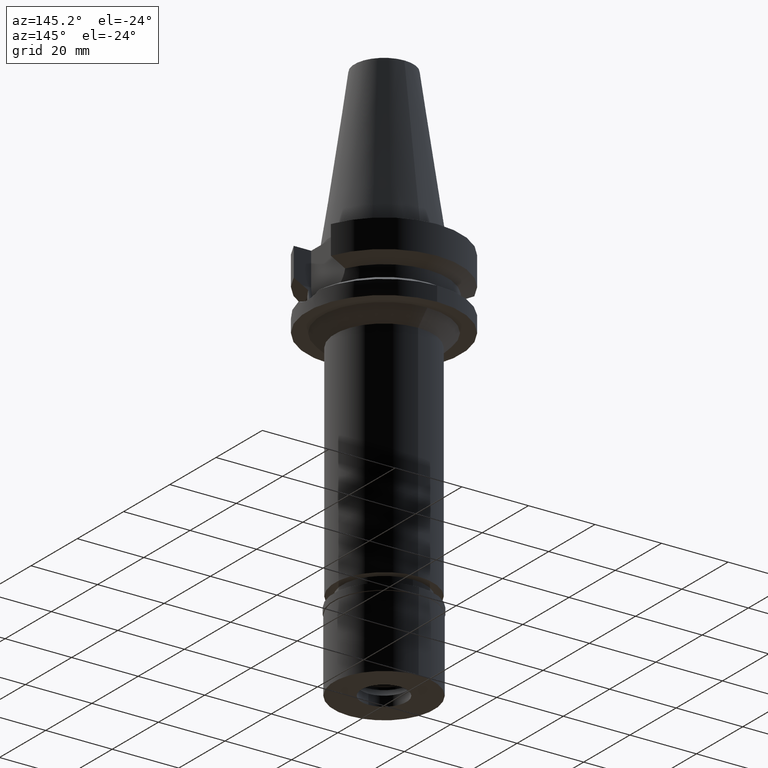
[diagram: clean part render]
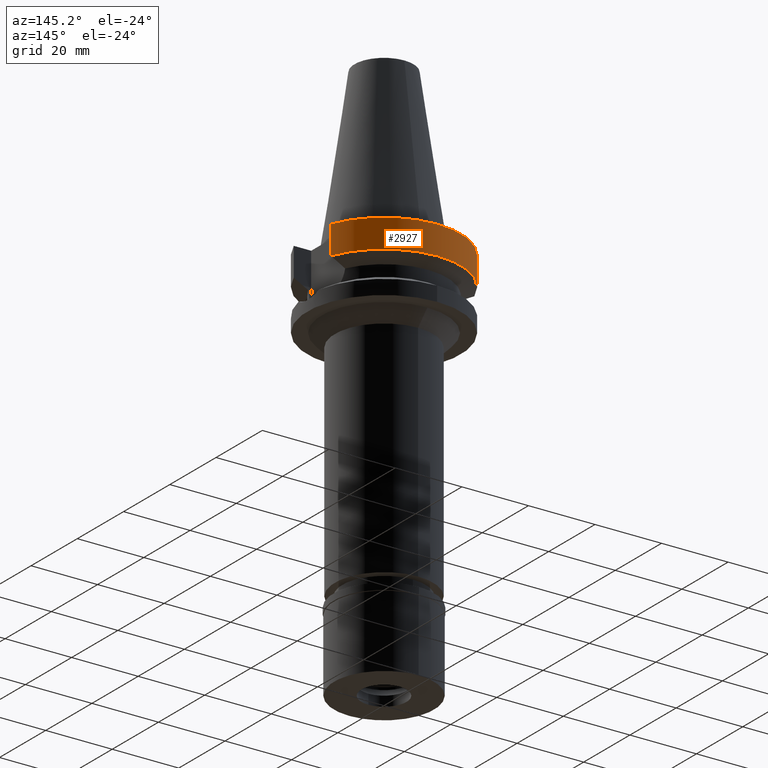
[diagram: same view with one face highlighted and labeled with its STEP entity id]
A machine part, auxiliary view. The second image highlights one B-rep face of the part: STEP entity #2927.
In plain terms, the highlighted cylindrical surface (partial cylindrical patch) has radius 23 mm, axis along (0, 0, -1).
Its self-contained STEP definition (entity closure, byte-faithful):
#45 = ORIENTED_EDGE ( 'NONE', *, *, #564, .F. ) ;
#137 = DIRECTION ( 'NONE',  ( 0.0000000000000000000, 0.0000000000000000000, -1.000000000000000000 ) ) ;
#205 = VERTEX_POINT ( 'NONE', #2533 ) ;
#235 = VECTOR ( 'NONE', #309, 1000.000000000000114 ) ;
#309 = DIRECTION ( 'NONE',  ( 9.134698358602689986E-08, 2.444834607303914619E-07, -0.9999999999999659162 ) ) ;
#408 = FACE_OUTER_BOUND ( 'NONE', #1523, .T. ) ;
#443 = VERTEX_POINT ( 'NONE', #2646 ) ;
#564 = EDGE_CURVE ( 'NONE', #1964, #2020, #2346, .T. ) ;
#613 = AXIS2_PLACEMENT_3D ( 'NONE', #1376, #2742, #1850 ) ;
#875 = EDGE_CURVE ( 'NONE', #205, #2020, #2728, .T. ) ;
#1051 = ORIENTED_EDGE ( 'NONE', *, *, #875, .T. ) ;
#1062 = EDGE_CURVE ( 'NONE', #1964, #443, #1722, .T. ) ;
#1118 = DIRECTION ( 'NONE',  ( 0.0000000000000000000, 0.0000000000000000000, -1.000000000000000000 ) ) ;
#1324 = DIRECTION ( 'NONE',  ( 0.0000000000000000000, -1.000000000000000000, 0.0000000000000000000 ) ) ;
#1376 = CARTESIAN_POINT ( 'NONE',  ( 0.0000000000000000000, 1.093341284896999988E-14, -9.567208369710998639 ) ) ;
#1423 = CARTESIAN_POINT ( 'NONE',  ( -21.54524231189000005, 8.050002094537999753, -9.567194606710000215 ) ) ;
#1474 = DIRECTION ( 'NONE',  ( -1.843132785652997636E-08, 4.933012910309982838E-08, 0.9999999999999985567 ) ) ;
#1523 = EDGE_LOOP ( 'NONE', ( #45, #2661, #1790, #1051 ) ) ;
#1722 = CIRCLE ( 'NONE', #2824, 23.00000000000000000 ) ;
#1724 = AXIS2_PLACEMENT_3D ( 'NONE', #1997, #137, #1324 ) ;
#1773 = CARTESIAN_POINT ( 'NONE',  ( 0.0000000000000000000, 1.914367876426999810E-14, -1.000000000000000000 ) ) ;
#1790 = ORIENTED_EDGE ( 'NONE', *, *, #2700, .F. ) ;
#1850 = DIRECTION ( 'NONE',  ( 0.0000000000000000000, 1.000000000000000000, 0.0000000000000000000 ) ) ;
#1910 = LINE ( 'NONE', #2357, #2053 ) ;
#1964 = VERTEX_POINT ( 'NONE', #2861 ) ;
#1997 = CARTESIAN_POINT ( 'NONE',  ( 0.0000000000000000000, 1.914367876426999810E-14, 56.32000000000000028 ) ) ;
#2020 = VERTEX_POINT ( 'NONE', #1423 ) ;
#2053 = VECTOR ( 'NONE', #1474, 1000.000000000000114 ) ;
#2346 = LINE ( 'NONE', #2579, #235 ) ;
#2357 = CARTESIAN_POINT ( 'NONE',  ( 21.54524325238000060, 8.049999577379001181, -9.567211146543000311 ) ) ;
#2425 = CYLINDRICAL_SURFACE ( 'NONE', #1724, 23.00000000000000000 ) ;
#2533 = CARTESIAN_POINT ( 'NONE',  ( 21.54524325238000060, 8.049999577379001181, -9.567211146543000311 ) ) ;
#2579 = CARTESIAN_POINT ( 'NONE',  ( -21.54524309446999908, 8.050000000000000711, -1.000000000000000000 ) ) ;
#2646 = CARTESIAN_POINT ( 'NONE',  ( 21.54524309446999908, 8.050000000000000711, -1.000000000000000000 ) ) ;
#2654 = DIRECTION ( 'NONE',  ( 0.0000000000000000000, 1.000000000000000000, 0.0000000000000000000 ) ) ;
#2661 = ORIENTED_EDGE ( 'NONE', *, *, #1062, .T. ) ;
#2700 = EDGE_CURVE ( 'NONE', #205, #443, #1910, .T. ) ;
#2728 = CIRCLE ( 'NONE', #613, 23.00000000000000000 ) ;
#2742 = DIRECTION ( 'NONE',  ( 0.0000000000000000000, 0.0000000000000000000, 1.000000000000000000 ) ) ;
#2824 = AXIS2_PLACEMENT_3D ( 'NONE', #1773, #1118, #2654 ) ;
#2861 = CARTESIAN_POINT ( 'NONE',  ( -21.54524309446999908, 8.050000000000000711, -1.000000000000000000 ) ) ;
#2927 = ADVANCED_FACE ( 'NONE', ( #408 ), #2425, .T. ) ;